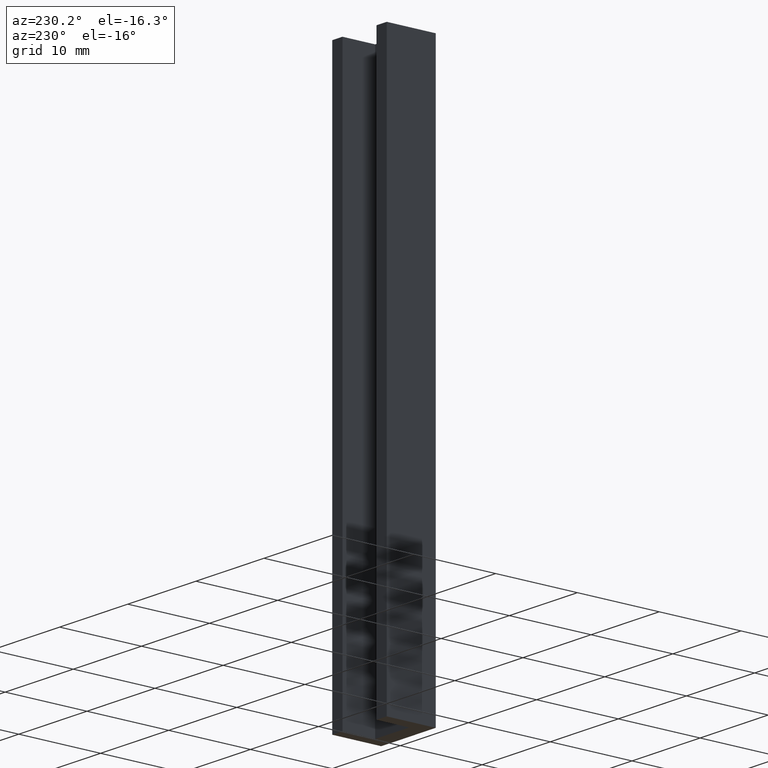
[diagram: clean part render]
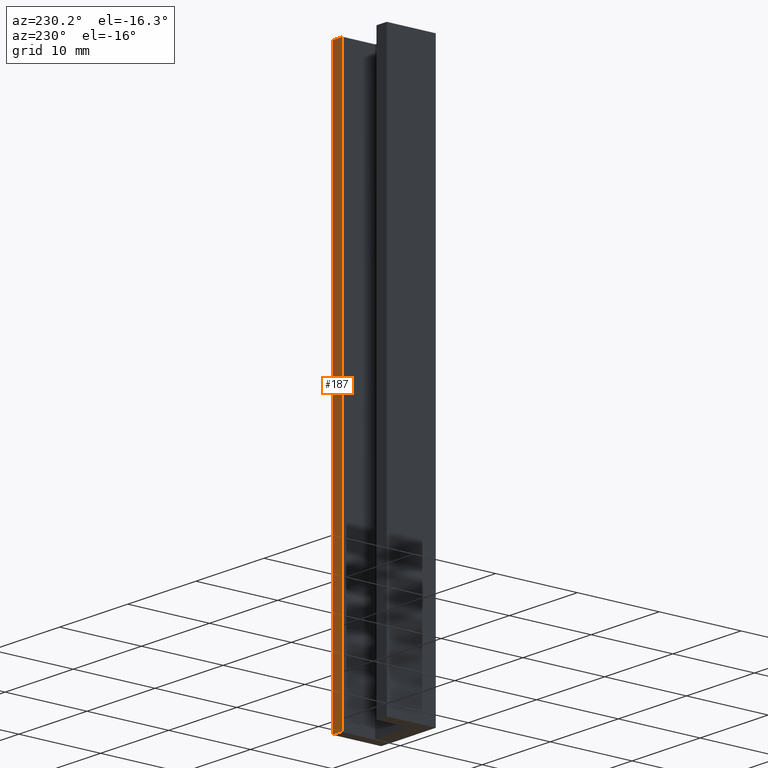
[diagram: same view with one face highlighted and labeled with its STEP entity id]
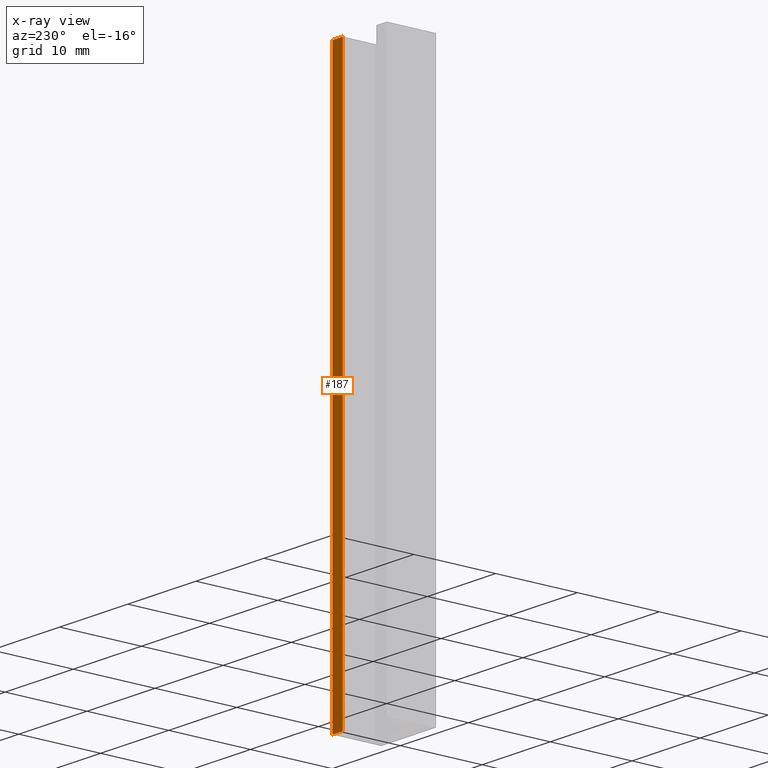
[diagram: x-ray of the same camera — body ghosted, the highlighted face saturated]
A machine part, auxiliary view. The second image highlights one B-rep face of the part: STEP entity #187.
The next image is the same camera in x-ray: the body ghosted, the highlighted face saturated — about 0% of this face is hidden behind the body in this view.
In plain terms, the highlighted planar face has unit normal (0, 1, 0).
Its self-contained STEP definition (entity closure, byte-faithful):
#21=FACE_OUTER_BOUND('',#31,.T.);
#31=EDGE_LOOP('',(#151,#152,#153,#154));
#42=LINE('',#287,#66);
#53=LINE('',#309,#77);
#54=LINE('',#312,#78);
#55=LINE('',#313,#79);
#66=VECTOR('',#235,10.);
#77=VECTOR('',#256,10.);
#78=VECTOR('',#259,10.);
#79=VECTOR('',#260,10.);
#84=VERTEX_POINT('',#273);
#90=VERTEX_POINT('',#285);
#96=VERTEX_POINT('',#307);
#97=VERTEX_POINT('',#311);
#106=EDGE_CURVE('',#84,#90,#42,.T.);
#117=EDGE_CURVE('',#90,#96,#53,.T.);
#118=EDGE_CURVE('',#96,#97,#54,.T.);
#119=EDGE_CURVE('',#84,#97,#55,.T.);
#151=ORIENTED_EDGE('',*,*,#118,.T.);
#152=ORIENTED_EDGE('',*,*,#119,.F.);
#153=ORIENTED_EDGE('',*,*,#106,.T.);
#154=ORIENTED_EDGE('',*,*,#117,.T.);
#177=PLANE('',#220);
#187=ADVANCED_FACE('',(#21),#177,.T.);
#220=AXIS2_PLACEMENT_3D('',#310,#257,#258);
#235=DIRECTION('',(-1.,0.,0.));
#256=DIRECTION('',(0.,0.,1.));
#257=DIRECTION('center_axis',(0.,1.,0.));
#258=DIRECTION('ref_axis',(0.,0.,1.));
#259=DIRECTION('',(1.,0.,0.));
#260=DIRECTION('',(0.,0.,1.));
#273=CARTESIAN_POINT('',(4.,5.,-34.));
#285=CARTESIAN_POINT('',(2.5,5.,-34.));
#287=CARTESIAN_POINT('',(4.,5.,-34.));
#307=CARTESIAN_POINT('',(2.5,5.,34.));
#309=CARTESIAN_POINT('',(2.5,5.,0.));
#310=CARTESIAN_POINT('Origin',(2.5,5.,0.));
#311=CARTESIAN_POINT('',(4.,5.,34.));
#312=CARTESIAN_POINT('',(4.,5.,34.));
#313=CARTESIAN_POINT('',(4.,5.,0.));